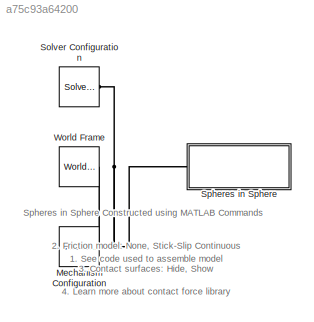
MODEL slx_a75c93a64200
KIND model
CONFIG AbsTol = 1e-4
CONFIG EnableMultiTasking = on
CONFIG FixedStep = auto
CONFIG MaxStep = auto
CONFIG MinStep = auto
CONFIG RelTol = 1e-3
CONFIG SampleTimeConstraint = Unconstrained
CONFIG SolverName = ode15s
CONFIG StartTime = 0.0
CONFIG StopTime = 10.0
WORKSPACE source: mxarray member
WORKSPACE bcon_inner_inner = 100
WORKSPACE bcon_inner_outer = 100
WORKSPACE clr_inner_sphere = [0.2 0.4 0.6]
WORKSPACE clr_outer_sphere = [0.6 0.6 0.6]
WORKSPACE inner_sphere_rad = 0.05
WORKSPACE kcon_inner_inner = 10000
WORKSPACE kcon_inner_outer = 10000
WORKSPACE muk_inner_inner = 0.5
WORKSPACE muk_inner_outer = 0.5
WORKSPACE mus_inner_inner = 0.7
WORKSPACE mus_inner_outer = 0.7
WORKSPACE outer_sphere_rad_in = 0.15
WORKSPACE outer_sphere_rad_out = 0.17
WORKSPACE outer_sphere_xs = [0 0 0.00261786096559 0.00523492450538 0.00785039343644 0.0104634710616 0.0130733614121 0.0156792694901 0.0182804015108 0.020875965144 0.023465169756 0.02604722665 ... (724 elements, 362x2)]
WORKSPACE vth_inner_inner = 0.01
WORKSPACE vth_inner_outer = 0.01
BLOCK [Reference] Mechanism Configuration  REF=sm_lib/Utilities/Mechanism
Configuration
  Ports = [0, 0, 0, 0, 0, 0, 1]
  SourceBlock = sm_lib/Utilities/Mechanism\nConfiguration
  SourceProductBaseCode = MS
  SourceType = Mechanism\nConfiguration
BLOCK [Reference] Solver Configuration  REF=nesl_utility/Solver
Configuration
  Ports = [0, 0, 0, 0, 0, 0, 1]
  SourceBlock = nesl_utility/Solver\nConfiguration
  SourceProductBaseCode = PW,SS
  SourceType = Solver\nConfiguration
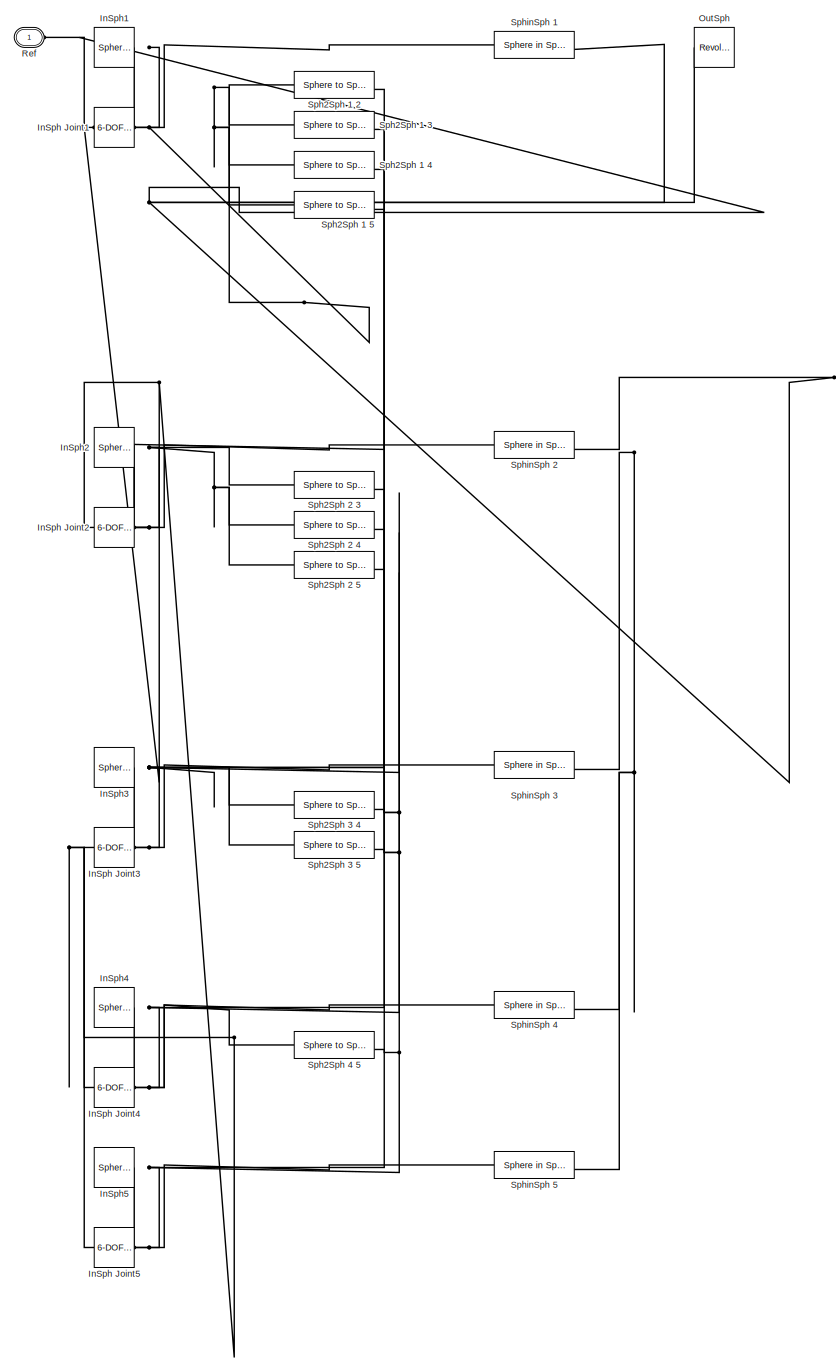
[diagram: Spheres in Sphere - part 1/1, most of the canvas]
BLOCK [SubSystem] Spheres in Sphere
  Ports = [0, 0, 0, 0, 0, 1]
  RequestExecContextInheritance = off
BLOCK [Reference] Spheres in Sphere/InSph Joint1  REF=sm_lib/Joints/6-DOF Joint
  Ports = [0, 0, 0, 0, 0, 1, 1]
  SourceBlock = sm_lib/Joints/6-DOF Joint
  SourceProductBaseCode = MS
  SourceType = 6-DOF Joint
BLOCK [Reference] Spheres in Sphere/InSph Joint2  REF=sm_lib/Joints/6-DOF Joint
  Ports = [0, 0, 0, 0, 0, 1, 1]
  SourceBlock = sm_lib/Joints/6-DOF Joint
  SourceProductBaseCode = MS
  SourceType = 6-DOF Joint
BLOCK [Reference] Spheres in Sphere/InSph Joint3  REF=sm_lib/Joints/6-DOF Joint
  Ports = [0, 0, 0, 0, 0, 1, 1]
  SourceBlock = sm_lib/Joints/6-DOF Joint
  SourceProductBaseCode = MS
  SourceType = 6-DOF Joint
BLOCK [Reference] Spheres in Sphere/InSph Joint4  REF=sm_lib/Joints/6-DOF Joint
  Ports = [0, 0, 0, 0, 0, 1, 1]
  SourceBlock = sm_lib/Joints/6-DOF Joint
  SourceProductBaseCode = MS
  SourceType = 6-DOF Joint
BLOCK [Reference] Spheres in Sphere/InSph Joint5  REF=sm_lib/Joints/6-DOF Joint
  Ports = [0, 0, 0, 0, 0, 1, 1]
  SourceBlock = sm_lib/Joints/6-DOF Joint
  SourceProductBaseCode = MS
  SourceType = 6-DOF Joint
BLOCK [Reference] Spheres in Sphere/InSph1  REF=sm_lib/Body Elements/Spherical Solid
  Ports = [0, 0, 0, 0, 0, 0, 1]
  SourceBlock = sm_lib/Body Elements/Spherical Solid
  SourceProductBaseCode = MS
  SourceType = Spherical Solid
BLOCK [Reference] Spheres in Sphere/InSph2  REF=sm_lib/Body Elements/Spherical Solid
  Ports = [0, 0, 0, 0, 0, 0, 1]
  SourceBlock = sm_lib/Body Elements/Spherical Solid
  SourceProductBaseCode = MS
  SourceType = Spherical Solid
BLOCK [Reference] Spheres in Sphere/InSph3  REF=sm_lib/Body Elements/Spherical Solid
  Ports = [0, 0, 0, 0, 0, 0, 1]
  SourceBlock = sm_lib/Body Elements/Spherical Solid
  SourceProductBaseCode = MS
  SourceType = Spherical Solid
BLOCK [Reference] Spheres in Sphere/InSph4  REF=sm_lib/Body Elements/Spherical Solid
  Ports = [0, 0, 0, 0, 0, 0, 1]
  SourceBlock = sm_lib/Body Elements/Spherical Solid
  SourceProductBaseCode = MS
  SourceType = Spherical Solid
BLOCK [Reference] Spheres in Sphere/InSph5  REF=sm_lib/Body Elements/Spherical Solid
  Ports = [0, 0, 0, 0, 0, 0, 1]
  SourceBlock = sm_lib/Body Elements/Spherical Solid
  SourceProductBaseCode = MS
  SourceType = Spherical Solid
BLOCK [Reference] Spheres in Sphere/OutSph  REF=sm_lib/Body Elements/Revolved Solid
  Ports = [0, 0, 0, 0, 0, 0, 1]
  SourceBlock = sm_lib/Body Elements/Revolved Solid
  SourceProductBaseCode = MS
  SourceType = Revolved Solid
BLOCK [PMIOPort] Spheres in Sphere/Ref
  Side = Left
BLOCK [Reference] Spheres in Sphere/Sph2Sph 1 2  REF=Contact_Forces_Lib/3D/Sphere to Sphere Force
  Ports = [0, 1, 0, 0, 0, 1, 1]
  SourceBlock = Contact_Forces_Lib/3D/Sphere to Sphere Force
  SourceProductName = Simscape Multibody Contact Forces Library
  SourceType = Sphere to Sphere Force
BLOCK [Reference] Spheres in Sphere/Sph2Sph 1 3  REF=Contact_Forces_Lib/3D/Sphere to Sphere Force
  Ports = [0, 1, 0, 0, 0, 1, 1]
  SourceBlock = Contact_Forces_Lib/3D/Sphere to Sphere Force
  SourceProductName = Simscape Multibody Contact Forces Library
  SourceType = Sphere to Sphere Force
BLOCK [Reference] Spheres in Sphere/Sph2Sph 1 4  REF=Contact_Forces_Lib/3D/Sphere to Sphere Force
  Ports = [0, 1, 0, 0, 0, 1, 1]
  SourceBlock = Contact_Forces_Lib/3D/Sphere to Sphere Force
  SourceProductName = Simscape Multibody Contact Forces Library
  SourceType = Sphere to Sphere Force
BLOCK [Reference] Spheres in Sphere/Sph2Sph 1 5  REF=Contact_Forces_Lib/3D/Sphere to Sphere Force
  Ports = [0, 1, 0, 0, 0, 1, 1]
  SourceBlock = Contact_Forces_Lib/3D/Sphere to Sphere Force
  SourceProductName = Simscape Multibody Contact Forces Library
  SourceType = Sphere to Sphere Force
BLOCK [Reference] Spheres in Sphere/Sph2Sph 2 3  REF=Contact_Forces_Lib/3D/Sphere to Sphere Force
  Ports = [0, 1, 0, 0, 0, 1, 1]
  SourceBlock = Contact_Forces_Lib/3D/Sphere to Sphere Force
  SourceProductName = Simscape Multibody Contact Forces Library
  SourceType = Sphere to Sphere Force
BLOCK [Reference] Spheres in Sphere/Sph2Sph 2 4  REF=Contact_Forces_Lib/3D/Sphere to Sphere Force
  Ports = [0, 1, 0, 0, 0, 1, 1]
  SourceBlock = Contact_Forces_Lib/3D/Sphere to Sphere Force
  SourceProductName = Simscape Multibody Contact Forces Library
  SourceType = Sphere to Sphere Force
BLOCK [Reference] Spheres in Sphere/Sph2Sph 2 5  REF=Contact_Forces_Lib/3D/Sphere to Sphere Force
  Ports = [0, 1, 0, 0, 0, 1, 1]
  SourceBlock = Contact_Forces_Lib/3D/Sphere to Sphere Force
  SourceProductName = Simscape Multibody Contact Forces Library
  SourceType = Sphere to Sphere Force
BLOCK [Reference] Spheres in Sphere/Sph2Sph 3 4  REF=Contact_Forces_Lib/3D/Sphere to Sphere Force
  Ports = [0, 1, 0, 0, 0, 1, 1]
  SourceBlock = Contact_Forces_Lib/3D/Sphere to Sphere Force
  SourceProductName = Simscape Multibody Contact Forces Library
  SourceType = Sphere to Sphere Force
BLOCK [Reference] Spheres in Sphere/Sph2Sph 3 5  REF=Contact_Forces_Lib/3D/Sphere to Sphere Force
  Ports = [0, 1, 0, 0, 0, 1, 1]
  SourceBlock = Contact_Forces_Lib/3D/Sphere to Sphere Force
  SourceProductName = Simscape Multibody Contact Forces Library
  SourceType = Sphere to Sphere Force
BLOCK [Reference] Spheres in Sphere/Sph2Sph 4 5  REF=Contact_Forces_Lib/3D/Sphere to Sphere Force
  Ports = [0, 1, 0, 0, 0, 1, 1]
  SourceBlock = Contact_Forces_Lib/3D/Sphere to Sphere Force
  SourceProductName = Simscape Multibody Contact Forces Library
  SourceType = Sphere to Sphere Force
BLOCK [Reference] Spheres in Sphere/SphinSph 1  REF=Contact_Forces_Lib/3D/Sphere in Sphere Force
  Ports = [0, 1, 0, 0, 0, 1, 1]
  SourceBlock = Contact_Forces_Lib/3D/Sphere in Sphere Force
  SourceProductName = Simscape Multibody Contact Forces Library
  SourceType = Sphere in Sphere Force
BLOCK [Reference] Spheres in Sphere/SphinSph 2  REF=Contact_Forces_Lib/3D/Sphere in Sphere Force
  Ports = [0, 1, 0, 0, 0, 1, 1]
  SourceBlock = Contact_Forces_Lib/3D/Sphere in Sphere Force
  SourceProductName = Simscape Multibody Contact Forces Library
  SourceType = Sphere in Sphere Force
BLOCK [Reference] Spheres in Sphere/SphinSph 3  REF=Contact_Forces_Lib/3D/Sphere in Sphere Force
  Ports = [0, 1, 0, 0, 0, 1, 1]
  SourceBlock = Contact_Forces_Lib/3D/Sphere in Sphere Force
  SourceProductName = Simscape Multibody Contact Forces Library
  SourceType = Sphere in Sphere Force
BLOCK [Reference] Spheres in Sphere/SphinSph 4  REF=Contact_Forces_Lib/3D/Sphere in Sphere Force
  Ports = [0, 1, 0, 0, 0, 1, 1]
  SourceBlock = Contact_Forces_Lib/3D/Sphere in Sphere Force
  SourceProductName = Simscape Multibody Contact Forces Library
  SourceType = Sphere in Sphere Force
BLOCK [Reference] Spheres in Sphere/SphinSph 5  REF=Contact_Forces_Lib/3D/Sphere in Sphere Force
  Ports = [0, 1, 0, 0, 0, 1, 1]
  SourceBlock = Contact_Forces_Lib/3D/Sphere in Sphere Force
  SourceProductName = Simscape Multibody Contact Forces Library
  SourceType = Sphere in Sphere Force
BLOCK [Reference] World Frame  REF=sm_lib/Frames and
Transforms/World Frame
  Ports = [0, 0, 0, 0, 0, 0, 1]
  SourceBlock = sm_lib/Frames and\nTransforms/World Frame
  SourceProductBaseCode = MS
  SourceType = World Frame
ANNOTATION (root): 1. See code used to assemble model 2. Friction model: None , Stick-Slip Continuous 3. Contact surfaces: Hide , Show 4. Learn more about contact force library
ANNOTATION (root): Spheres in Sphere Constructed using MATLAB Commands
PNET net1: Mechanism Configuration:RConn1 -- Solver Configuration:RConn1 -- Spheres in Sphere:LConn1 -- World Frame:RConn1
PNET net2: Spheres in Sphere/InSph Joint1:LConn1 -- Spheres in Sphere/InSph Joint2:LConn1 -- Spheres in Sphere/InSph Joint3:LConn1 -- Spheres in Sphere/InSph Joint4:LConn1 -- Spheres in Sphere/InSph Joint5:LConn1 -- Spheres in Sphere/OutSph:RConn1 -- Spheres in Sphere/Ref:RConn1 -- Spheres in Sphere/SphinSph 1:RConn1 -- Spheres in Sphere/SphinSph 2:RConn1 -- Spheres in Sphere/SphinSph 3:RConn1 -- Spheres in Sphere/SphinSph 4:RConn1 -- Spheres in Sphere/SphinSph 5:RConn1
PNET net3: Spheres in Sphere/InSph Joint1:RConn1 -- Spheres in Sphere/InSph1:RConn1 -- Spheres in Sphere/Sph2Sph 1 2:LConn1 -- Spheres in Sphere/Sph2Sph 1 3:LConn1 -- Spheres in Sphere/Sph2Sph 1 4:LConn1 -- Spheres in Sphere/Sph2Sph 1 5:LConn1 -- Spheres in Sphere/SphinSph 1:LConn1
PNET net4: Spheres in Sphere/InSph Joint2:RConn1 -- Spheres in Sphere/InSph2:RConn1 -- Spheres in Sphere/Sph2Sph 1 2:RConn1 -- Spheres in Sphere/Sph2Sph 2 3:LConn1 -- Spheres in Sphere/Sph2Sph 2 4:LConn1 -- Spheres in Sphere/Sph2Sph 2 5:LConn1 -- Spheres in Sphere/SphinSph 2:LConn1
PNET net5: Spheres in Sphere/InSph Joint3:RConn1 -- Spheres in Sphere/InSph3:RConn1 -- Spheres in Sphere/Sph2Sph 1 3:RConn1 -- Spheres in Sphere/Sph2Sph 2 3:RConn1 -- Spheres in Sphere/Sph2Sph 3 4:LConn1 -- Spheres in Sphere/Sph2Sph 3 5:LConn1 -- Spheres in Sphere/SphinSph 3:LConn1
PNET net6: Spheres in Sphere/InSph Joint4:RConn1 -- Spheres in Sphere/InSph4:RConn1 -- Spheres in Sphere/Sph2Sph 1 4:RConn1 -- Spheres in Sphere/Sph2Sph 2 4:RConn1 -- Spheres in Sphere/Sph2Sph 3 4:RConn1 -- Spheres in Sphere/Sph2Sph 4 5:LConn1 -- Spheres in Sphere/SphinSph 4:LConn1
PNET net7: Spheres in Sphere/InSph Joint5:RConn1 -- Spheres in Sphere/InSph5:RConn1 -- Spheres in Sphere/Sph2Sph 1 5:RConn1 -- Spheres in Sphere/Sph2Sph 2 5:RConn1 -- Spheres in Sphere/Sph2Sph 3 5:RConn1 -- Spheres in Sphere/Sph2Sph 4 5:RConn1 -- Spheres in Sphere/SphinSph 5:LConn1
note: PNET lines group multi-terminal physical nets as a canonical sorted terminal list (undirected conserving connections); 2-terminal nets keep the pairwise PLINE form
